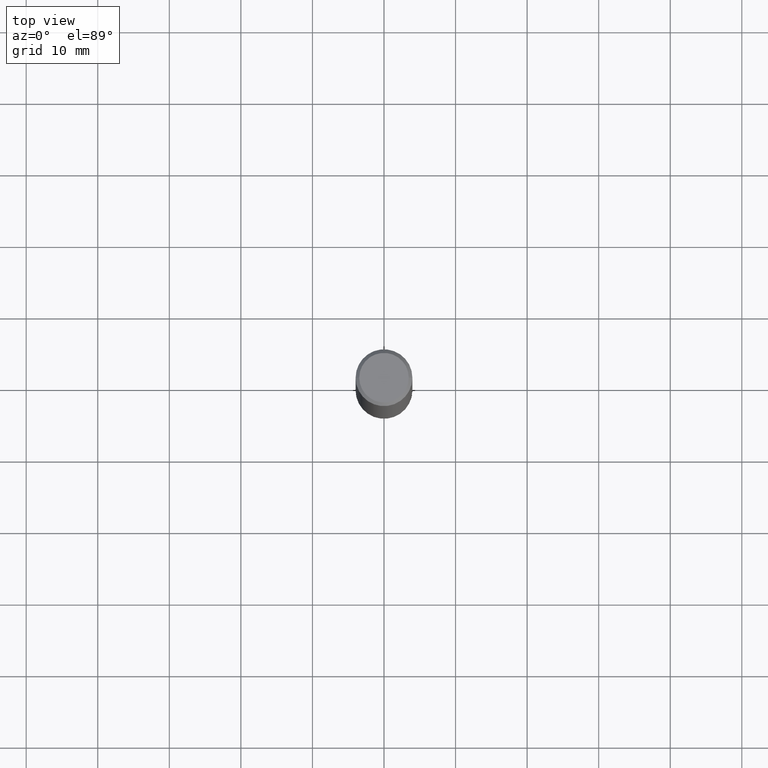
[diagram: clean part render]
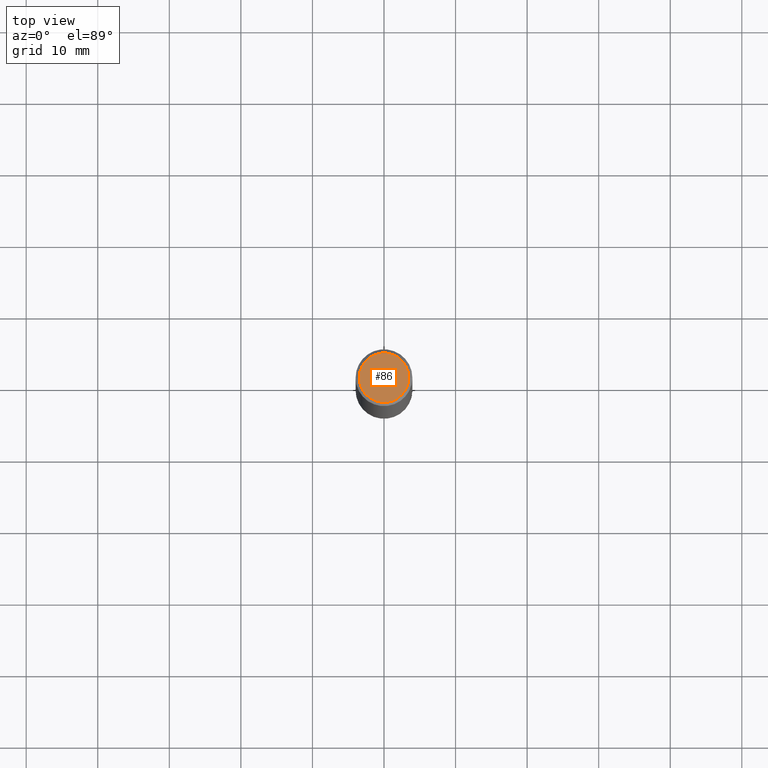
[diagram: same view with one face highlighted and labeled with its STEP entity id]
A machine part, top view. The second image highlights one B-rep face of the part: STEP entity #86.
In plain terms, the highlighted planar face has unit normal (0, -0, -1).
Its self-contained STEP definition (entity closure, byte-faithful):
#6 = CARTESIAN_POINT ( 'NONE',  ( 0.1362499999999995659, -1.038262645562514969E-15, 6.957025900226674056E-30 ) ) ;
#18 = AXIS2_PLACEMENT_3D ( 'NONE', #122, #333, #250 ) ;
#29 = VERTEX_POINT ( 'NONE', #315 ) ;
#32 = CARTESIAN_POINT ( 'NONE',  ( 9.514286648347508022E-16, 0.1362499999999995659, -4.757143324173770774E-16 ) ) ;
#86 = ADVANCED_FACE ( 'NONE', ( #153 ), #149, .F. ) ;
#102 = CARTESIAN_POINT ( 'NONE',  ( 0.000000000000000000, 0.000000000000000000, 0.000000000000000000 ) ) ;
#109 = EDGE_CURVE ( 'NONE', #29, #152, #360, .T. ) ;
#110 = ORIENTED_EDGE ( 'NONE', *, *, #339, .T. ) ;
#112 = CIRCLE ( 'NONE', #300, 0.1362499999999995659 ) ;
#122 = CARTESIAN_POINT ( 'NONE',  ( 0.000000000000000000, 0.000000000000000000, 0.000000000000000000 ) ) ;
#133 = DIRECTION ( 'NONE',  ( 1.000000000000000000, -6.982962677686266711E-15, 4.876176775795935793E-29 ) ) ;
#149 = PLANE ( 'NONE',  #357 ) ;
#152 = VERTEX_POINT ( 'NONE', #6 ) ;
#153 = FACE_OUTER_BOUND ( 'NONE', #365, .T. ) ;
#231 = DIRECTION ( 'NONE',  ( -1.000000000000000000, 6.982962677686265922E-15, -4.876176775795935793E-29 ) ) ;
#250 = DIRECTION ( 'NONE',  ( 1.000000000000000000, -6.982962677686266711E-15, 4.876176775795935793E-29 ) ) ;
#282 = DIRECTION ( 'NONE',  ( -2.445468806185136597E-29, 3.491481338843145583E-15, 1.000000000000000000 ) ) ;
#300 = AXIS2_PLACEMENT_3D ( 'NONE', #102, #282, #133 ) ;
#315 = CARTESIAN_POINT ( 'NONE',  ( -0.1362499999999995659, 9.863434782231818597E-16, -6.775751096333118864E-30 ) ) ;
#329 = ORIENTED_EDGE ( 'NONE', *, *, #109, .T. ) ;
#333 = DIRECTION ( 'NONE',  ( -2.445468806185136597E-29, 3.491481338843145583E-15, 1.000000000000000000 ) ) ;
#339 = EDGE_CURVE ( 'NONE', #152, #29, #112, .T. ) ;
#345 = DIRECTION ( 'NONE',  ( 2.438088387897960049E-29, -3.491481338843145188E-15, -1.000000000000000000 ) ) ;
#357 = AXIS2_PLACEMENT_3D ( 'NONE', #32, #345, #231 ) ;
#360 = CIRCLE ( 'NONE', #18, 0.1362499999999995659 ) ;
#365 = EDGE_LOOP ( 'NONE', ( #329, #110 ) ) ;